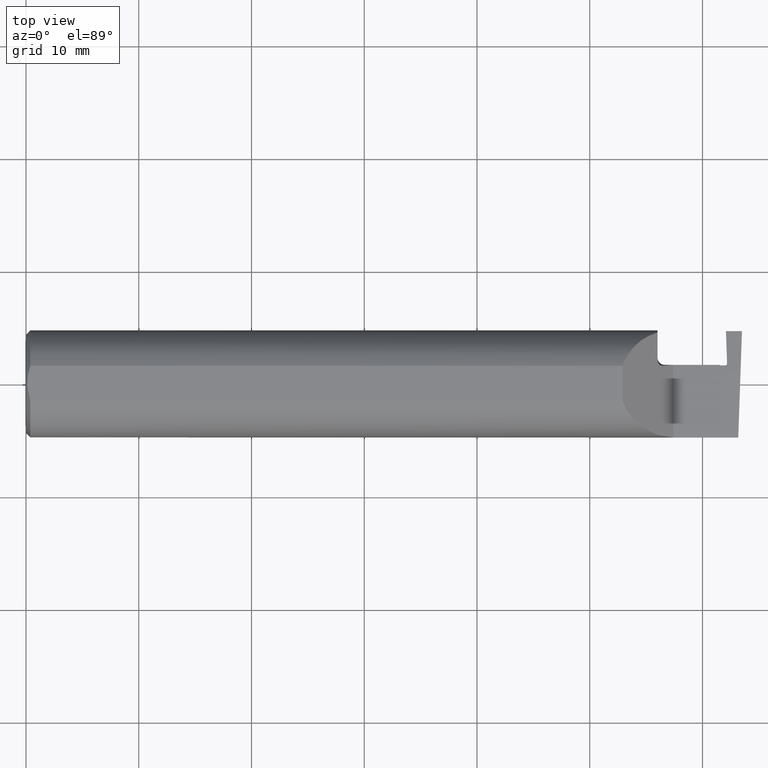
[diagram: clean part render]
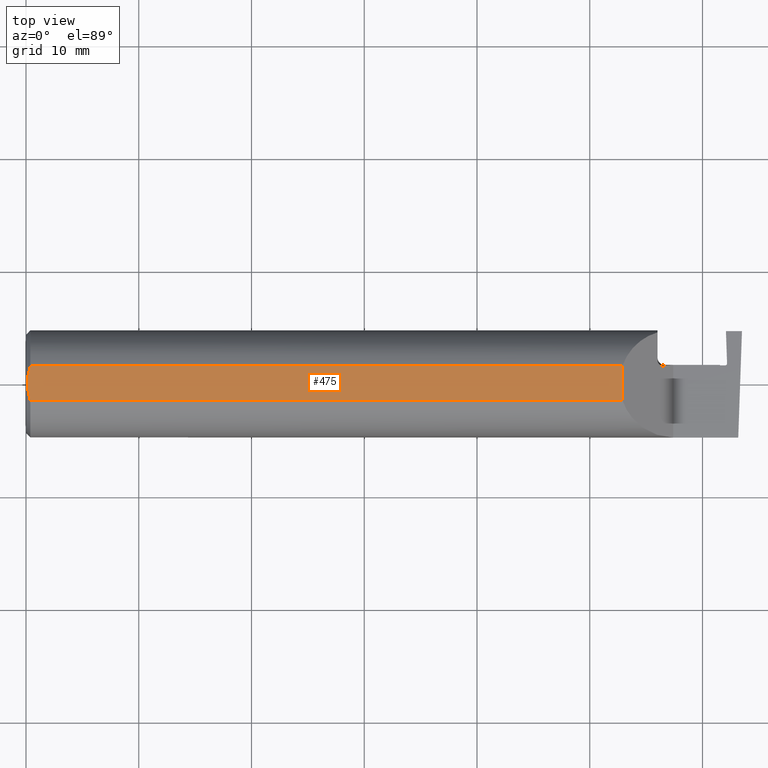
[diagram: same view with one face highlighted and labeled with its STEP entity id]
A machine part, top view. The second image highlights one B-rep face of the part: STEP entity #475.
In plain terms, the highlighted planar face has unit normal (0, -0, 1).
Its self-contained STEP definition (entity closure, byte-faithful):
#1 = CARTESIAN_POINT ( 'NONE',  ( 0.009318557230853204490, -0.04061090184993776386, 0.1773499999999999799 ) ) ;
#9 = DIRECTION ( 'NONE',  ( 0.000000000000000000, -1.000000000000000000, 0.000000000000000000 ) ) ;
#22 = VECTOR ( 'NONE', #50, 39.37007874015748143 ) ;
#50 = DIRECTION ( 'NONE',  ( -1.000000000000000000, -0.000000000000000000, -0.000000000000000000 ) ) ;
#67 = DIRECTION ( 'NONE',  ( 0.000000000000000000, -0.000000000000000000, 1.000000000000000000 ) ) ;
#115 = CARTESIAN_POINT ( 'NONE',  ( 0.004999999999999835305, 2.941982542510190671E-17, 0.1773499999999999799 ) ) ;
#125 = EDGE_LOOP ( 'NONE', ( #874, #401, #859, #833, #434 ) ) ;
#142 = VECTOR ( 'NONE', #9, 39.37007874015748143 ) ;
#147 = CARTESIAN_POINT ( 'NONE',  ( 0.005896899252109314912, -0.02043863390046160924, 0.1773500000000000354 ) ) ;
#163 = EDGE_CURVE ( 'NONE', #803, #621, #320, .T. ) ;
#174 = CARTESIAN_POINT ( 'NONE',  ( 0.01499999999999999944, -0.06039039658753697637, 0.1773499999999999799 ) ) ;
#222 = CARTESIAN_POINT ( 'NONE',  ( 0.01185291896084217714, 0.05062716160312498437, 0.1773499999999999521 ) ) ;
#223 = CARTESIAN_POINT ( 'NONE',  ( 2.082650000000001445, 0.06039039658753697637, 0.1773499999999999799 ) ) ;
#299 = CARTESIAN_POINT ( 'NONE',  ( 0.01499999999999999944, -0.06039039658753697637, 0.1773499999999999799 ) ) ;
#309 = CARTESIAN_POINT ( 'NONE',  ( 0.01499999999999756042, 0.06039039658754215278, 0.1773499999999999799 ) ) ;
#320 = B_SPLINE_CURVE_WITH_KNOTS ( 'NONE', 3,
 ( #423, #708, #147, #1, #356, #299 ),
 .UNSPECIFIED., .F., .F.,
 ( 4, 2, 4 ),
 ( 0.005750933109916887831, 0.006521788775031543001, 0.007292644440146199038 ),
 .UNSPECIFIED. ) ;
#338 = DIRECTION ( 'NONE',  ( 1.000000000000000000, 0.000000000000000000, 0.000000000000000000 ) ) ;
#352 = CARTESIAN_POINT ( 'NONE',  ( 0.009346310357820472939, 0.04072930668827419443, 0.1773500000000000354 ) ) ;
#356 = CARTESIAN_POINT ( 'NONE',  ( 0.01186375298701897348, -0.05066077215909271098, 0.1773499999999999799 ) ) ;
#365 = CARTESIAN_POINT ( 'NONE',  ( 0.005916828623699125177, 0.02060071390057613763, 0.1773499999999999799 ) ) ;
#377 = EDGE_CURVE ( 'NONE', #621, #693, #691, .T. ) ;
#401 = ORIENTED_EDGE ( 'NONE', *, *, #705, .T. ) ;
#423 = CARTESIAN_POINT ( 'NONE',  ( 0.004999999999999835305, 2.941982542510190671E-17, 0.1773499999999999799 ) ) ;
#434 = ORIENTED_EDGE ( 'NONE', *, *, #377, .T. ) ;
#475 = ADVANCED_FACE ( 'NONE', ( #514 ), #572, .T. ) ;
#510 = B_SPLINE_CURVE_WITH_KNOTS ( 'NONE', 3,
 ( #714, #222, #352, #365, #646, #923 ),
 .UNSPECIFIED., .F., .F.,
 ( 4, 2, 4 ),
 ( 0.004207325536406422359, 0.004979129323161655095, 0.005750933109916887831 ),
 .UNSPECIFIED. ) ;
#514 = FACE_OUTER_BOUND ( 'NONE', #125, .T. ) ;
#541 = VERTEX_POINT ( 'NONE', #223 ) ;
#555 = LINE ( 'NONE', #765, #22 ) ;
#568 = CARTESIAN_POINT ( 'NONE',  ( 2.082650000000001445, -0.1873500000000000165, 0.1773499999999999799 ) ) ;
#572 = PLANE ( 'NONE',  #922 ) ;
#583 = CARTESIAN_POINT ( 'NONE',  ( 2.500000000000000000, -0.1873500000000000165, 0.1773499999999999799 ) ) ;
#621 = VERTEX_POINT ( 'NONE', #174 ) ;
#646 = CARTESIAN_POINT ( 'NONE',  ( 0.004999999999999839642, 0.01027925662263861305, 0.1773499999999999799 ) ) ;
#665 = VERTEX_POINT ( 'NONE', #309 ) ;
#691 = LINE ( 'NONE', #703, #709 ) ;
#693 = VERTEX_POINT ( 'NONE', #871 ) ;
#703 = CARTESIAN_POINT ( 'NONE',  ( 0.000000000000000000, -0.06039039658753697637, 0.1773499999999999799 ) ) ;
#705 = EDGE_CURVE ( 'NONE', #541, #665, #555, .T. ) ;
#708 = CARTESIAN_POINT ( 'NONE',  ( 0.004999999999999833571, -0.01026662907944655458, 0.1773499999999999521 ) ) ;
#709 = VECTOR ( 'NONE', #338, 39.37007874015748143 ) ;
#714 = CARTESIAN_POINT ( 'NONE',  ( 0.01499999999999756042, 0.06039039658754215278, 0.1773499999999999799 ) ) ;
#765 = CARTESIAN_POINT ( 'NONE',  ( 0.000000000000000000, 0.06039039658753697637, 0.1773499999999999799 ) ) ;
#787 = LINE ( 'NONE', #568, #142 ) ;
#803 = VERTEX_POINT ( 'NONE', #115 ) ;
#804 = EDGE_CURVE ( 'NONE', #665, #803, #510, .T. ) ;
#832 = EDGE_CURVE ( 'NONE', #541, #693, #787, .T. ) ;
#833 = ORIENTED_EDGE ( 'NONE', *, *, #163, .T. ) ;
#856 = DIRECTION ( 'NONE',  ( 1.000000000000000000, 0.000000000000000000, -0.000000000000000000 ) ) ;
#859 = ORIENTED_EDGE ( 'NONE', *, *, #804, .T. ) ;
#871 = CARTESIAN_POINT ( 'NONE',  ( 2.082650000000001445, -0.06039039658753699025, 0.1773499999999999799 ) ) ;
#874 = ORIENTED_EDGE ( 'NONE', *, *, #832, .F. ) ;
#922 = AXIS2_PLACEMENT_3D ( 'NONE', #583, #67, #856 ) ;
#923 = CARTESIAN_POINT ( 'NONE',  ( 0.004999999999999835305, 2.941982542510190671E-17, 0.1773499999999999799 ) ) ;